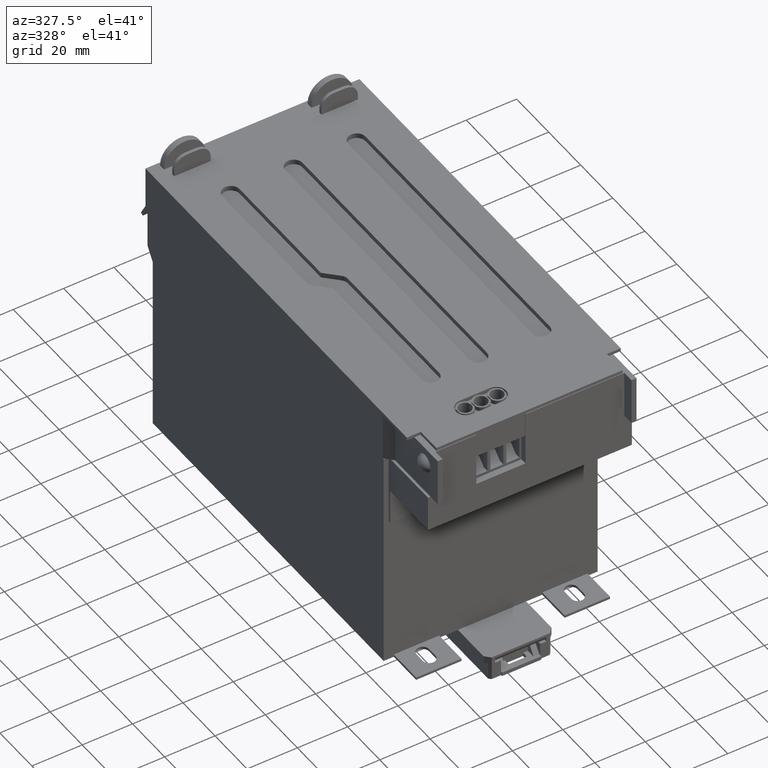
[diagram: clean part render]
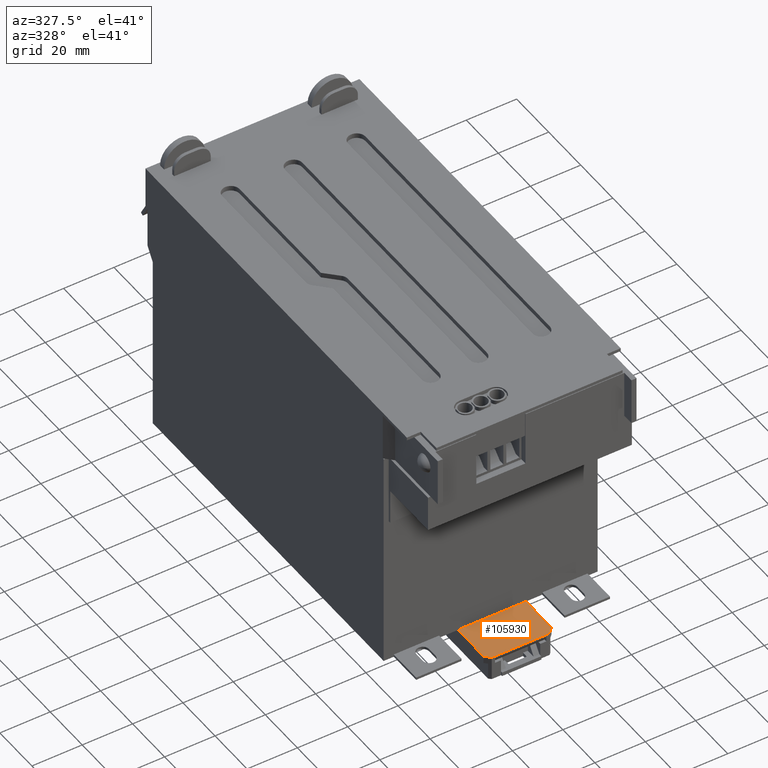
[diagram: same view with one face highlighted and labeled with its STEP entity id]
A machine part, auxiliary view. The second image highlights one B-rep face of the part: STEP entity #105930.
In plain terms, the highlighted planar face has unit normal (0, 0, 1).
Its self-contained STEP definition (entity closure, byte-faithful):
#8150=CARTESIAN_POINT('',(14.1117749006083,-1.00022214599537,1.));
#8160=VERTEX_POINT('',#8150);
#8190=CARTESIAN_POINT('',(0.,-1.00022214599537,1.));
#8200=DIRECTION('',(-1.,1.22560195905149E-16,0.));
#8210=VECTOR('',#8200,1.);
#8220=LINE('',#8190,#8210);
#8230=CARTESIAN_POINT('',(-12.9882250993917,-1.00022214599537,1.));
#8240=VERTEX_POINT('',#8230);
#8250=EDGE_CURVE('',#8160,#8240,#8220,.T.);
#80320=CARTESIAN_POINT('',(14.1117749006083,-1.,0.));
#80330=DIRECTION('',(1.22407328372272E-16,0.,1.));
#80340=VECTOR('',#80330,1.);
#80350=LINE('',#80320,#80340);
#80360=CARTESIAN_POINT('',(14.1117749006083,-1.,16.8382250993925));
#80370=VERTEX_POINT('',#80360);
#80380=EDGE_CURVE('',#8160,#80370,#80350,.T.);
#105540=CARTESIAN_POINT('',(-28.3,-1.00022214599536,-163.051438105689));
#105550=DIRECTION('',(1.22560195905149E-16,1.,1.50463276784806E-36));
#105560=DIRECTION('',(1.,-1.22560195905149E-16,-6.6935234368936E-42));
#105570=AXIS2_PLACEMENT_3D('',#105540,#105550,#105560);
#105580=PLANE('',#105570);
#105590=ORIENTED_EDGE('',*,*,#80380,.F.);
#105600=CARTESIAN_POINT('',(0.499999999999915,-1.,30.4500000000004));
#105610=DIRECTION('',(-0.70710678118656,0.,0.707106781186535));
#105620=VECTOR('',#105610,1.);
#105630=LINE('',#105600,#105620);
#105640=CARTESIAN_POINT('',(12.0000000000074,-1.,18.9499999999933));
#105650=VERTEX_POINT('',#105640);
#105660=EDGE_CURVE('',#80370,#105650,#105630,.T.);
#105670=ORIENTED_EDGE('',*,*,#105660,.F.);
#105680=CARTESIAN_POINT('',(0.499999999999915,-1.,18.9499999999999));
#105690=DIRECTION('',(-1.,0.,1.22407328372272E-16));
#105700=VECTOR('',#105690,1.);
#105710=LINE('',#105680,#105700);
#105720=CARTESIAN_POINT('',(-11.0000000000009,-1.,18.9499999999999));
#105730=VERTEX_POINT('',#105720);
#105740=EDGE_CURVE('',#105650,#105730,#105710,.T.);
#105750=ORIENTED_EDGE('',*,*,#105740,.F.);
#105760=CARTESIAN_POINT('',(0.499999999999915,-1.,30.4500000000003));
#105770=DIRECTION('',(0.707106781186561,0.,0.707106781186534));
#105780=VECTOR('',#105770,1.);
#105790=LINE('',#105760,#105780);
#105800=CARTESIAN_POINT('',(-12.9882250993916,-1.,16.9617749006092));
#105810=VERTEX_POINT('',#105800);
#105820=EDGE_CURVE('',#105810,#105730,#105790,.T.);
#105830=ORIENTED_EDGE('',*,*,#105820,.T.);
#105840=CARTESIAN_POINT('',(-12.9882250993917,-1.,0.));
#105850=DIRECTION('',(-1.22407328372272E-16,0.,-1.));
#105860=VECTOR('',#105850,1.);
#105870=LINE('',#105840,#105860);
#105880=EDGE_CURVE('',#105810,#8240,#105870,.T.);
#105890=ORIENTED_EDGE('',*,*,#105880,.F.);
#105900=ORIENTED_EDGE('',*,*,#8250,.T.);
#105910=EDGE_LOOP('',(#105900,#105890,#105830,#105750,#105670,#105590));
#105920=FACE_OUTER_BOUND('',#105910,.T.);
#105930=ADVANCED_FACE('',(#105920),#105580,.T.);